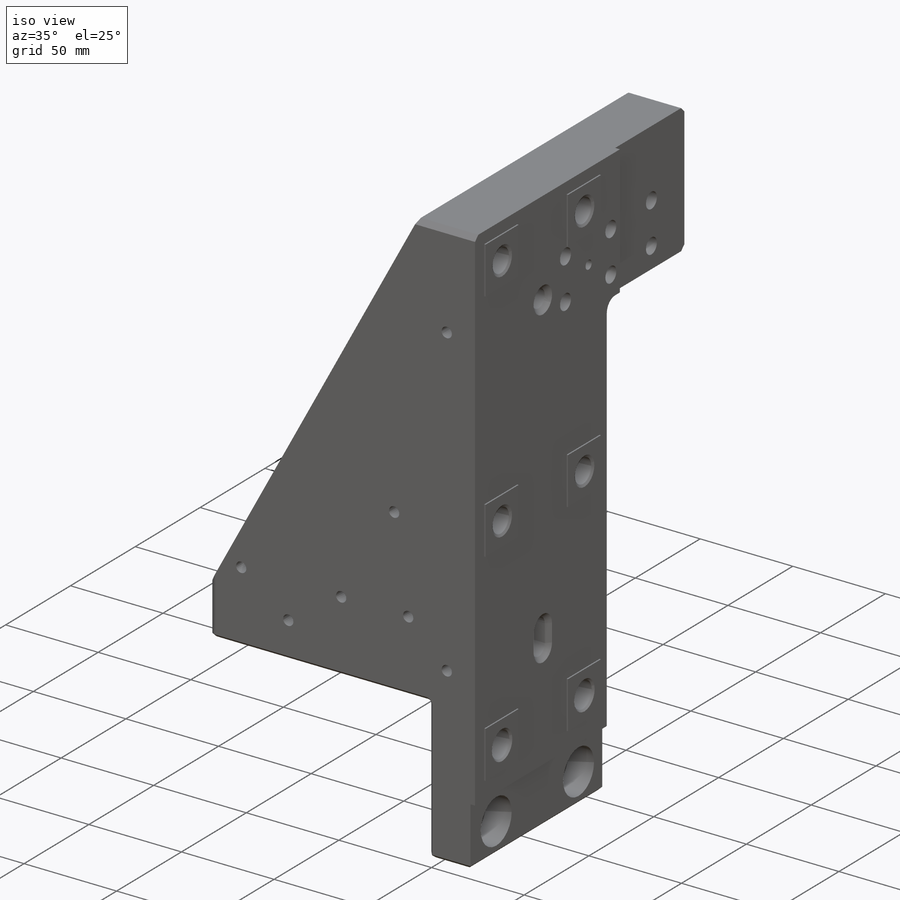
[diagram: iso view]
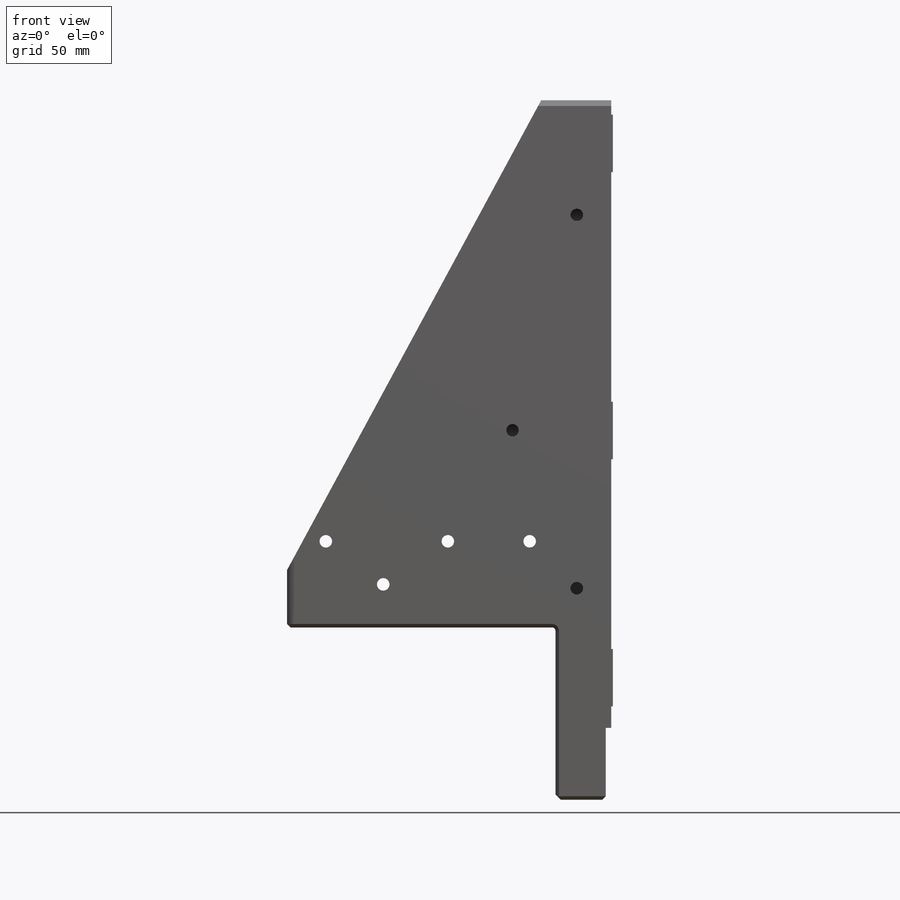
[diagram: front view]
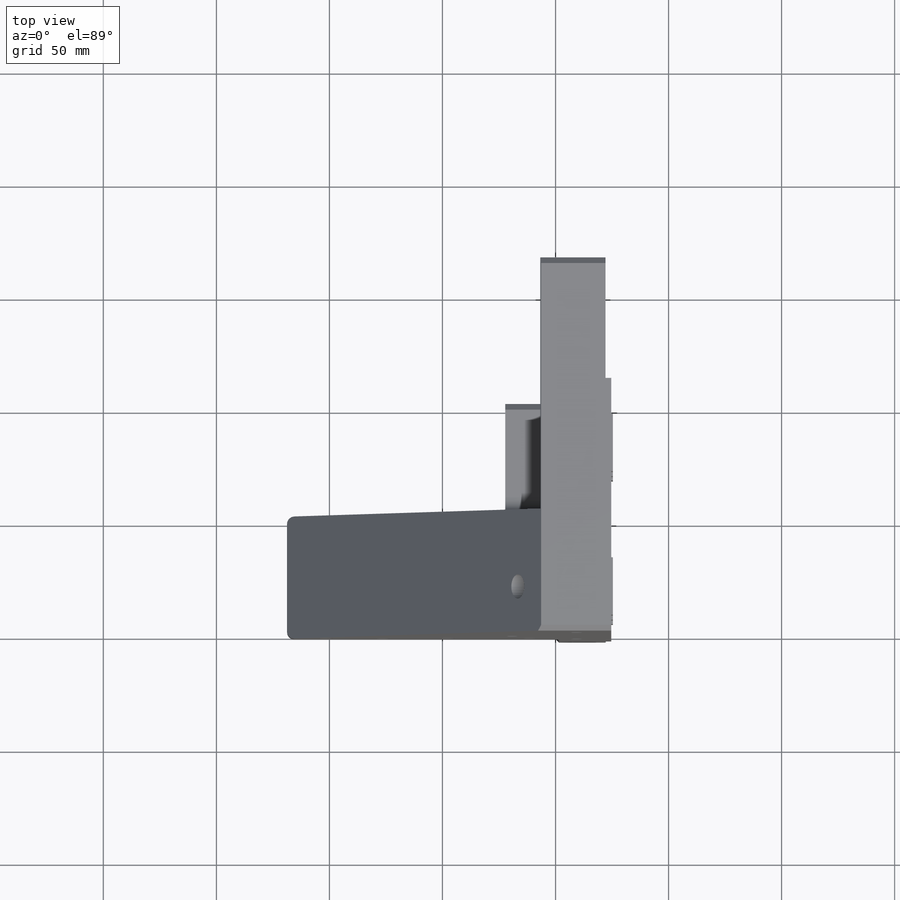
[diagram: top view]
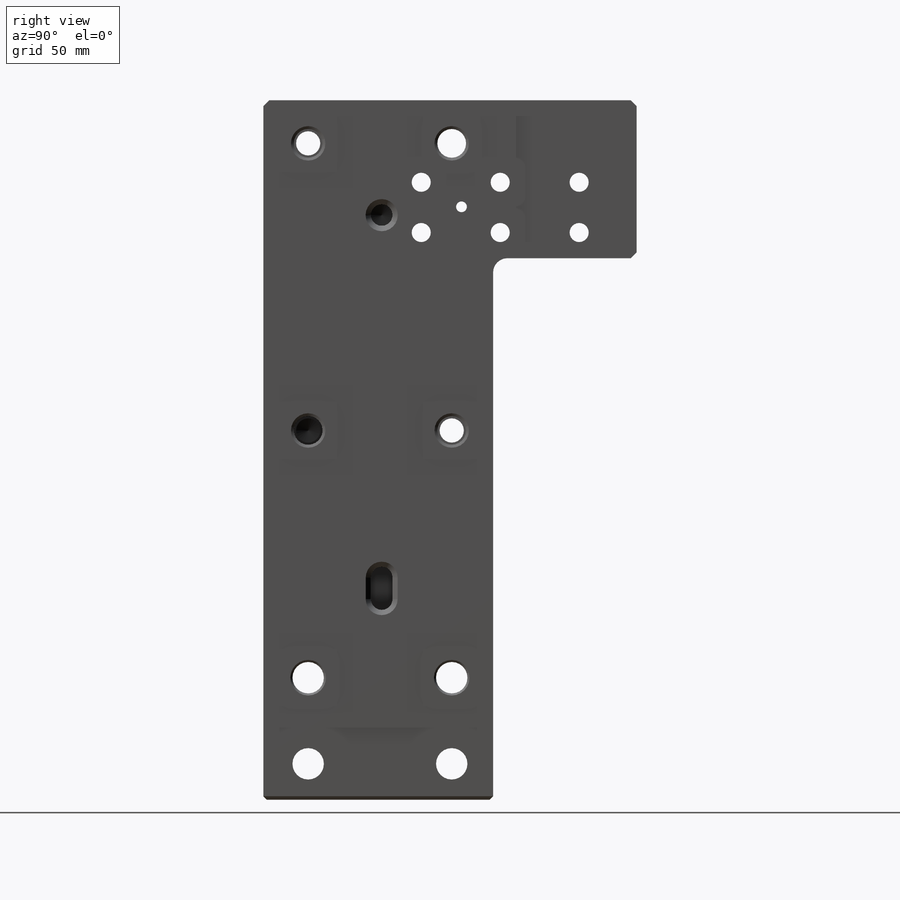
[diagram: right view]
SOLIDWORKS PART (.sldprt)
format: sldprt  version: not decoded by parser v0  size: 1,189,888 bytes
history: native  units: mm
features: sketch x34, hole x12, cut_extrude x6, chamfer x5, extrude x4, plane x3, fillet x3, material x1, pattern_linear x1 (+11 scaffold rows collapsed)
feature tree (80):
  scaffold x11  (default folders/planes/origin — collapsed)
  material  "6061-T6 Al"
  plane  "XY"
  plane  "XZ"
  plane  "YZ"
  sketch  "Sketch1"  dims[D1=309.372mm D2=25.4mm]
  extrude  "Extrude1"  Depth=101.6mm
  sketch  "Sketch2"  dims[D1=118.745mm D2=6.35mm D3=25.4mm D4=76.2mm]
  extrude  "Extrude2"  Depth=53.975mm
  sketch  "Sketch7"  dims[D1=22.225mm]
  extrude  "Extrude3"  [1 undecoded]
  sketch  "Sketch3"  dims[D1=31.75mm D2=3.175mm]
  cut_extrude  "Cut-Extrude1"  Depth=-1 ID=-1
  hole  "Lateral Holes CBORE for 1/2 Socket Head Cap Screw2"  Diameter=13.8938mm Depth=22.225mm
  sketch  "Sketch40"  dims[D1=19.812mm D2=63.5mm D3=15.875mm]
  sketch  "Sketch39"  dims[hole-wizard template sketch: 41 standard entries collapsed; hole parameters kept: c12.Thru Hole Dia.=13.8938mm c12.Thru Hole Depth=22.225mm c12.C'Bore Dia.=23.8252mm c12.C'Bore Depth=13.97mm c12.Far C'Sink Dia.=15.748mm c12.D6=~2.963249mm c12.Far C'Sink Angle=90.0deg]
  hole  "Lateral Holes 1/2 Clearance Hole1"  Diameter=13.89126mm Depth=25.4mm
  sketch  "Sketch42"  dims[D1=19.812mm D2=63.5mm D3=53.975mm]
  sketch  "Sketch41"  dims[hole-wizard template sketch: 47 standard entries collapsed; hole parameters kept: c15.Thru Hole Depth=25.4mm c15.Near C'Sink Dia.=15.748mm c15.D4=~3.666174mm c15.Near C'Sink Angle=90.0deg c15.Far C'Sink Dia.=15.748mm c15.D6=~9.919017mm c15.Far C'Sink Angle=90.0deg]
  hole  "Lateral Holes 1/2-13 Tapped Hole1"  Diameter=10.71626mm Depth=50.8mm
  sketch  "Sketch48"  dims[c1.D1=290.322mm c1.D2=19.812mm c1.D3=63.5mm c2.D1=236.347mm c2.D4=127.0mm]
  sketch  "Sketch47"  dims[hole-wizard template sketch: 26 standard entries collapsed; hole parameters kept: c8.Tap Drill Dia.=~10.71626mm c8.Tap Drill Depth=50.8mm c8.Thread Major Dia.=12.7mm c8.Thread Depth=38.1mm c8.Near C'Sink Dia.=15.24mm c8.D6=~4.399409mm c8.Near C'Sink Angle=120.0deg c8.D7=~14.816244mm c8.Drill Angle=118.0deg]
  hole  "Bracket Holes 1/2-13 Tapped Hole1"  Diameter=10.71626mm Depth=44.45mm
  sketch  "Sketch44"  dims[c1.D1=53.975mm c1.D2=28.575mm c1.D3=47.625mm c1.D4=12.7mm c1.D5=11.43mm c1.D6=38.862mm c1.D7=28.575mm c2.D5=11.43mm c2.D6=28.575mm]
  sketch  "Sketch43"  dims[hole-wizard template sketch: 26 standard entries collapsed; hole parameters kept: c8.Tap Drill Dia.=~10.71626mm c8.Tap Drill Depth=44.45mm c8.Thread Major Dia.=12.7mm c8.Thread Depth=31.75mm c8.Near C'Sink Dia.=15.24mm c8.D6=~4.399409mm c8.Near C'Sink Angle=120.0deg c8.D7=~14.816244mm c8.Drill Angle=118.0deg]
  hole  "Pin Hole 3/8 (0.375) Diameter Hole3"  Diameter=9.525mm Depth=19.05mm
  sketch  "Sketch46"  dims[D1=28.575mm D2=76.2mm]
  sketch  "Sketch45"  dims[hole-wizard template sketch: 29 standard entries collapsed; hole parameters kept: c8.C'Bore Depth=3.302mm c8.Near C'Sink Dia.=10.668mm c8.D6=~4.399409mm c8.Near C'Sink Angle=90.0deg c8.D7=~14.816244mm c8.Drill Angle=118.0deg]
  sketch  "Sketch49"  dims[c1.D7=13.97mm c1.D8=~14.36624mm c2.D7=13.97mm c2.D1=12.7mm c2.D2=12.7mm c2.D3=25.4mm c2.D4=25.4mm c2.D5=25.4mm c2.D6=25.4mm c3.D7=12.7mm c3.D8=12.7mm c3.D1=12.7mm c3.D2=12.7mm c4.D7=12.7mm]
  cut_extrude  "Lateral Pads Extrude4"  Depth=0.762mm
  hole  "Thru Vent Holes 7/32 (0.21875) Diameter Hole1"  Diameter=5.55625mm Depth=101.6mm
  sketch  "Sketch51"  dims[c1.D1=34.925mm c1.D2=53.975mm c1.D3=47.625mm c1.D4=12.7mm c1.D5=34.925mm c2.D1=53.975mm c2.D2=38.1mm c2.D4=25.4mm c2.D5=19.05mm c3.D1=38.1mm]
  sketch  "Sketch52"  dims[hole-wizard template sketch: 60 standard entries collapsed; hole parameters kept: c18.Thru Hole Depth=101.6mm]
  hole  "Blind Vent Hole 7/32 (0.21875) Diameter Hole3"  Diameter=5.55625mm Depth=19.812mm
  sketch  "Sketch76"  dims[D1=44.45mm]
  sketch  "Sketch75"  dims[hole-wizard template sketch: 47 standard entries collapsed; hole parameters kept: c15.Hole Depth=19.812mm c15.D3=~14.816244mm c15.Drill Angle=118.0deg]
  hole  "Pin Hole 3/8 (0.375) Diameter Hole4"  Diameter=9.54278mm Depth=19.05mm
  sketch  "Sketch56"  dims[D1=52.324mm D2=50.8mm]
  sketch  "Sketch55"  dims[hole-wizard template sketch: 46 standard entries collapsed; hole parameters above]
  sketch  "Sketch57"  dims[c1.D2=~4.77139mm c1.D1=9.525mm c1.D3=101.6mm c1.D4=52.324mm c2.D3=215.9mm]
  cut_extrude  "Pin Slot Extrude5"  Depth=19.05mm
  chamfer  "Pin Slot Chamfer5"  Distance=2.286mm Angle=45deg
  sketch  "Sketch58"  dims[c1.D1=47.625mm c1.D2=~18.925489mm c2.D1=31.369mm c2.D2=15.748mm]
  cut_extrude  "Cut-Extrude2"  Depth=76.2mm
  sketch  "Sketch59"  dims[c1.D1=63.5mm c1.D2=31.369mm c2.D1=69.85mm]
  extrude  "Extrude4"  Depth=63.5mm
  hole  "Tapped Hole for 5/16-18 Helicoil1"  Diameter=8.4328mm Depth=32.131mm
  sketch  "Sketch61"  dims[c1.D1=27.0002mm c1.D2=284.5308mm c2.D1=273.1008mm c2.D2=38.0746mm]
  sketch  "Sketch60"  dims[hole-wizard template sketch: 41 standard entries collapsed; hole parameters kept: c12.Thru Tap Drill Dia.=8.4328mm c12.Thru Tap Drill Depth=32.131mm c12.Thread Major Dia.=~9.86536mm c12.Thread Depth=~19.26336mm c12.Near C'Sink Dia.=~11.13536mm c12.D6=~4.399409mm c12.Near C'Sink Angle=90.0deg]
  pattern_linear  "LPattern1"  Count1=3 Count2=2 Spacing1=34.925mm Spacing2=22.225mm
  chamfer  "Chamfer7"  Distance=2.54mm Angle=45deg
  sketch  "Sketch62"  dims[D1=53.34mm]
  cut_extrude  "Extrude5"  Depth=2.54mm
  hole  "7/32 (0.21875) Diameter Hole2"  Diameter=5.55625mm Depth=50.8mm
  sketch  "Sketch67"  dims[D1=15.24mm D2=17.2847mm D3=182.372mm]
  sketch  "Sketch66"  dims[hole-wizard template sketch: 47 standard entries collapsed; hole parameters kept: c15.Hole Depth=50.8mm c15.D3=~14.816244mm c15.Drill Angle=118.0deg]
  hole  "1/4 (0.25) Diameter Hole1"  Diameter=6.36778mm Depth=12.7mm
  sketch  "Sketch69"  dims[c1.D1=~11.13536mm c1.D2=8.4328mm c2.D1=87.63mm c2.D2=262.255mm c3.D1=52.0446mm c3.D2=10.8458mm]
  sketch  "Sketch68"  dims[hole-wizard template sketch: 39 standard entries collapsed; hole parameters kept: c13.Hole Dia.=~6.36778mm c13.Hole Depth=12.7mm c13.Near C'Sink Dia.=9.652mm c13.D4=~33.297463mm c13.Near C'Sink Angle=90.0deg c14.D5=~14.816244mm c14.Drill Angle=118.0deg]
  sketch  "Sketch70"  dims[D3=~3.18389mm D1=161.925mm D2=12.7mm]
  cut_extrude  "Extrude6"  Depth=12.7mm
  chamfer  "Chamfer8"  Distance=1.651mm Angle=45deg
  hole  "3/16 (0.1875) Diameter Hole1"  Diameter=4.7625mm Depth=32.131mm
  sketch  "Sketch72"
  sketch  "Sketch71"  dims[hole-wizard template sketch: 60 standard entries collapsed; hole parameters kept: c18.Thru Hole Depth=32.131mm]
  fillet  "Fillet2"  Radius=1.5875mm
  fillet  "Fillet3"  Radius=3.175mm
  chamfer  "Chamfer10"  Distance=1.524mm Angle=45deg
  fillet  "Fillet4"  Radius=6.35mm
  chamfer  "Chamfer11"  Distance=2.286mm Angle=45deg
decode coverage: 63 of 65 modeling features carry decoded parameters
note: ~ marks probable driven/reference dimensions
note: 1 parameter value undecoded
summary: Diameter pulled from absorbed wizard sketch
note: suppression state not decoded; provenance and decode notes live in map.json
